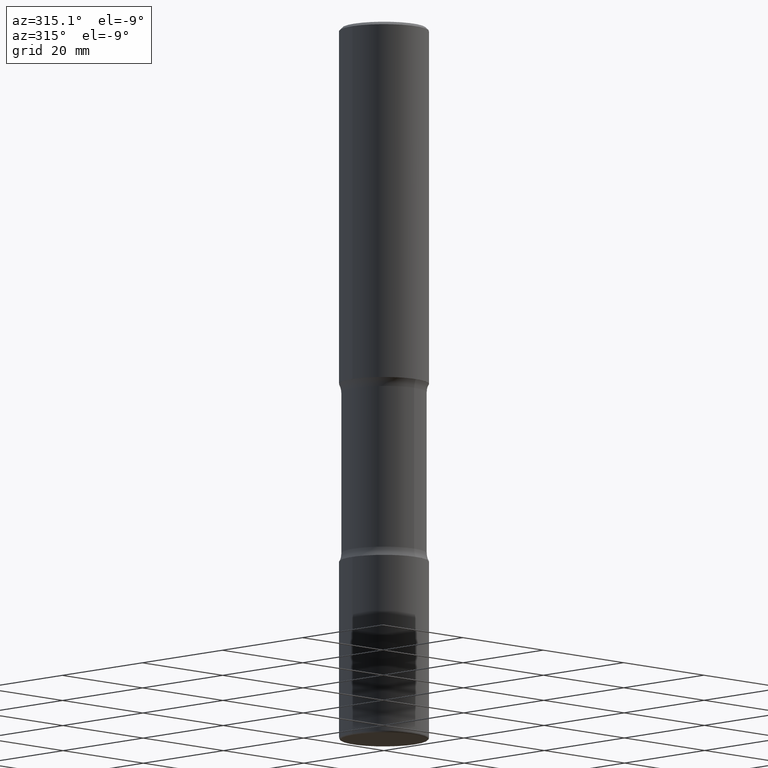
[diagram: clean part render]
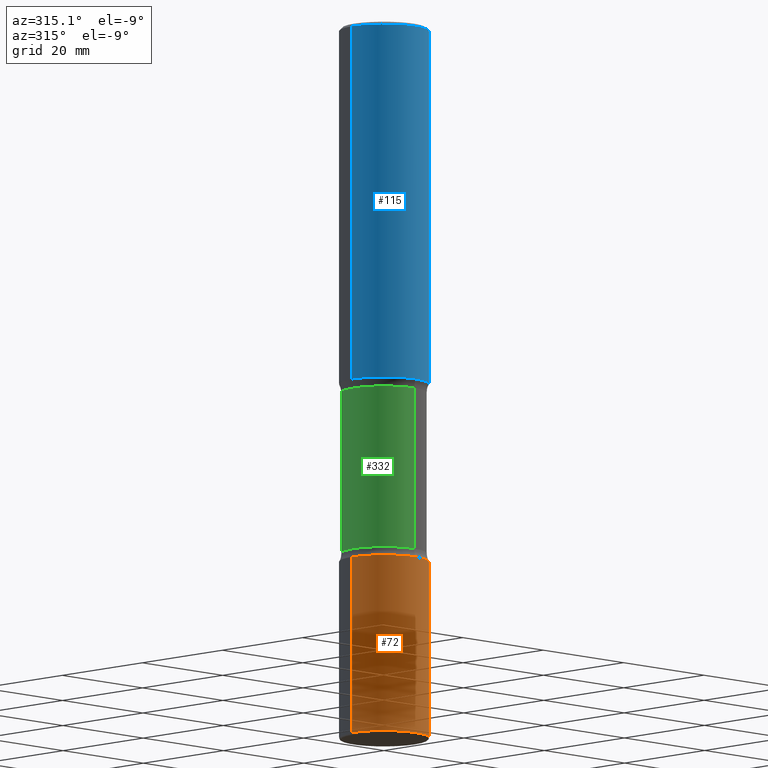
[diagram: same view with three faces highlighted in distinct colors, each labeled with its STEP entity id]
A machine part, auxiliary view with three faces highlighted in distinct colors.
Their STEP definitions:

[orange] entity #72 — the highlighted cylindrical surface (partial cylindrical patch) has radius 7.9375 mm, axis along (-0, 0, 1).
#11 = EDGE_CURVE ( 'NONE', #87, #347, #546, .T. ) ;
#15 = DIRECTION ( 'NONE',  ( -2.445468806185136597E-29, 3.491481338843145583E-15, 1.000000000000000000 ) ) ;
#31 = EDGE_CURVE ( 'NONE', #411, #347, #69, .T. ) ;
#36 = VECTOR ( 'NONE', #485, 39.37007874015748143 ) ;
#40 = CARTESIAN_POINT ( 'NONE',  ( 1.219066199883290567E-28, -1.740503447413308005E-14, -4.984999999999999432 ) ) ;
#54 = CARTESIAN_POINT ( 'NONE',  ( -0.3125000000000001665, -1.302859869814712249E-14, -3.749999999999999556 ) ) ;
#57 = FACE_OUTER_BOUND ( 'NONE', #380, .T. ) ;
#61 = CARTESIAN_POINT ( 'NONE',  ( 0.3125000000000001665, -2.182175836776959530E-15, 1.523805242436230636E-29 ) ) ;
#63 = ORIENTED_EDGE ( 'NONE', *, *, #178, .F. ) ;
#69 = CIRCLE ( 'NONE', #217, 0.3125000000000001665 ) ;
#72 = ADVANCED_FACE ( 'NONE', ( #57 ), #137, .T. ) ;
#80 = VECTOR ( 'NONE', #154, 39.37007874015748143 ) ;
#87 = VERTEX_POINT ( 'NONE', #513 ) ;
#94 = DIRECTION ( 'NONE',  ( 1.000000000000000000, -6.982962677686265133E-15, 0.000000000000000000 ) ) ;
#103 = ORIENTED_EDGE ( 'NONE', *, *, #466, .T. ) ;
#127 = DIRECTION ( 'NONE',  ( 1.000000000000000000, -6.982962677686264344E-15, 0.000000000000000000 ) ) ;
#137 = CYLINDRICAL_SURFACE ( 'NONE', #542, 0.3125000000000001665 ) ;
#154 = DIRECTION ( 'NONE',  ( -2.445468806185136877E-29, 3.491481338843145188E-15, 1.000000000000000000 ) ) ;
#158 = CARTESIAN_POINT ( 'NONE',  ( -0.3125000000000001665, 2.220446049250314264E-15, -1.537167215704658792E-29 ) ) ;
#178 = EDGE_CURVE ( 'NONE', #291, #411, #300, .T. ) ;
#204 = CARTESIAN_POINT ( 'NONE',  ( -0.3125000000000004441, -1.518458842488276381E-14, -4.984999999999999432 ) ) ;
#217 = AXIS2_PLACEMENT_3D ( 'NONE', #290, #15, #94 ) ;
#244 = DIRECTION ( 'NONE',  ( -2.445468806185136597E-29, 3.491481338843145583E-15, 1.000000000000000000 ) ) ;
#271 = AXIS2_PLACEMENT_3D ( 'NONE', #40, #311, #127 ) ;
#273 = DIRECTION ( 'NONE',  ( 1.000000000000000000, -6.982962677686266711E-15, 4.876176775795935232E-29 ) ) ;
#279 = CIRCLE ( 'NONE', #271, 0.3125000000000002220 ) ;
#287 = ORIENTED_EDGE ( 'NONE', *, *, #31, .F. ) ;
#290 = CARTESIAN_POINT ( 'NONE',  ( 9.170508023194261117E-29, -1.309305502066179584E-14, -3.749999999999999556 ) ) ;
#291 = VERTEX_POINT ( 'NONE', #204 ) ;
#300 = LINE ( 'NONE', #158, #36 ) ;
#311 = DIRECTION ( 'NONE',  ( -2.445468806185136597E-29, 3.491481338843145583E-15, 1.000000000000000000 ) ) ;
#340 = CARTESIAN_POINT ( 'NONE',  ( 0.3125000000000001665, -1.527523085743875418E-14, -3.749999999999999556 ) ) ;
#347 = VERTEX_POINT ( 'NONE', #340 ) ;
#380 = EDGE_LOOP ( 'NONE', ( #63, #103, #431, #287 ) ) ;
#411 = VERTEX_POINT ( 'NONE', #54 ) ;
#431 = ORIENTED_EDGE ( 'NONE', *, *, #11, .T. ) ;
#466 = EDGE_CURVE ( 'NONE', #291, #87, #279, .T. ) ;
#485 = DIRECTION ( 'NONE',  ( -2.445468806185136877E-29, 3.491481338843145188E-15, 1.000000000000000000 ) ) ;
#513 = CARTESIAN_POINT ( 'NONE',  ( 0.3125000000000004441, -1.958721031091003681E-14, -4.984999999999999432 ) ) ;
#531 = CARTESIAN_POINT ( 'NONE',  ( 0.000000000000000000, 0.000000000000000000, 0.000000000000000000 ) ) ;
#542 = AXIS2_PLACEMENT_3D ( 'NONE', #531, #244, #273 ) ;
#546 = LINE ( 'NONE', #61, #80 ) ;

[blue] entity #115 — the highlighted cylindrical surface (partial cylindrical patch) has radius 7.9375 mm, axis along (-0, 0, 1).
#1 = CARTESIAN_POINT ( 'NONE',  ( -0.3124999999999998890, 2.112346210000094260E-15, -0.02000000000000006981 ) ) ;
#24 = VERTEX_POINT ( 'NONE', #456 ) ;
#39 = DIRECTION ( 'NONE',  ( -2.445468806185136597E-29, 3.491481338843145583E-15, 1.000000000000000000 ) ) ;
#47 = AXIS2_PLACEMENT_3D ( 'NONE', #455, #371, #337 ) ;
#52 = ORIENTED_EDGE ( 'NONE', *, *, #83, .F. ) ;
#75 = DIRECTION ( 'NONE',  ( 1.000000000000000000, -6.982962677686266711E-15, 4.876176775795936353E-29 ) ) ;
#83 = EDGE_CURVE ( 'NONE', #547, #220, #305, .T. ) ;
#114 = EDGE_LOOP ( 'NONE', ( #503, #430, #463, #52 ) ) ;
#115 = ADVANCED_FACE ( 'NONE', ( #304 ), #476, .T. ) ;
#125 = DIRECTION ( 'NONE',  ( 1.000000000000000000, -6.982962677686266711E-15, 0.000000000000000000 ) ) ;
#171 = DIRECTION ( 'NONE',  ( -2.445468806185136877E-29, 3.491481338843145188E-15, 1.000000000000000000 ) ) ;
#216 = CARTESIAN_POINT ( 'NONE',  ( 0.000000000000000000, 0.000000000000000000, 0.000000000000000000 ) ) ;
#220 = VERTEX_POINT ( 'NONE', #441 ) ;
#226 = EDGE_CURVE ( 'NONE', #24, #547, #395, .T. ) ;
#251 = CARTESIAN_POINT ( 'NONE',  ( 0.3125000000000002220, -1.091087918388482329E-14, -2.499999999999999556 ) ) ;
#263 = DIRECTION ( 'NONE',  ( -2.445468806185136877E-29, 3.491481338843145188E-15, 1.000000000000000000 ) ) ;
#278 = VECTOR ( 'NONE', #171, 39.37007874015748143 ) ;
#303 = CARTESIAN_POINT ( 'NONE',  ( 0.3125000000000000000, -2.182175836776958347E-15, 1.523805242436230075E-29 ) ) ;
#304 = FACE_OUTER_BOUND ( 'NONE', #114, .T. ) ;
#305 = CIRCLE ( 'NONE', #530, 0.3124999999999998890 ) ;
#306 = EDGE_CURVE ( 'NONE', #24, #335, #501, .T. ) ;
#330 = DIRECTION ( 'NONE',  ( -2.445468806185136597E-29, 3.491481338843145583E-15, 1.000000000000000000 ) ) ;
#335 = VERTEX_POINT ( 'NONE', #251 ) ;
#337 = DIRECTION ( 'NONE',  ( 1.000000000000000000, -6.982962677686266711E-15, 0.000000000000000000 ) ) ;
#371 = DIRECTION ( 'NONE',  ( -2.445468806185136597E-29, 3.491481338843145583E-15, 1.000000000000000000 ) ) ;
#386 = LINE ( 'NONE', #303, #450 ) ;
#395 = LINE ( 'NONE', #560, #278 ) ;
#419 = CARTESIAN_POINT ( 'NONE',  ( 4.890937612370289799E-31, -6.982962677686315028E-17, -0.02000000000000006981 ) ) ;
#430 = ORIENTED_EDGE ( 'NONE', *, *, #306, .T. ) ;
#441 = CARTESIAN_POINT ( 'NONE',  ( 0.3124999999999998890, -2.213735251080466123E-15, -0.02000000000000006981 ) ) ;
#448 = EDGE_CURVE ( 'NONE', #335, #220, #386, .T. ) ;
#449 = AXIS2_PLACEMENT_3D ( 'NONE', #216, #39, #75 ) ;
#450 = VECTOR ( 'NONE', #263, 39.37007874015748143 ) ;
#455 = CARTESIAN_POINT ( 'NONE',  ( 6.113672015462840371E-29, -8.728703347107863365E-15, -2.499999999999999556 ) ) ;
#456 = CARTESIAN_POINT ( 'NONE',  ( -0.3125000000000002220, -2.178820437692046306E-15, -2.499999999999999556 ) ) ;
#463 = ORIENTED_EDGE ( 'NONE', *, *, #448, .T. ) ;
#476 = CYLINDRICAL_SURFACE ( 'NONE', #449, 0.3125000000000000000 ) ;
#501 = CIRCLE ( 'NONE', #47, 0.3125000000000002220 ) ;
#503 = ORIENTED_EDGE ( 'NONE', *, *, #226, .F. ) ;
#530 = AXIS2_PLACEMENT_3D ( 'NONE', #419, #330, #125 ) ;
#547 = VERTEX_POINT ( 'NONE', #1 ) ;
#560 = CARTESIAN_POINT ( 'NONE',  ( -0.3125000000000000000, 2.220446049250313081E-15, -1.537167215704658232E-29 ) ) ;

[green] entity #332 — the highlighted cylindrical surface (partial cylindrical patch) has radius 7.5406 mm, axis along (0, -0, -1).
#26 = VERTEX_POINT ( 'NONE', #105 ) ;
#38 = DIRECTION ( 'NONE',  ( 6.982962677686266711E-15, 1.000000000000000000, -3.680805717779217644E-15 ) ) ;
#43 = VECTOR ( 'NONE', #225, 39.37007874015748143 ) ;
#86 = EDGE_CURVE ( 'NONE', #509, #26, #354, .T. ) ;
#102 = DIRECTION ( 'NONE',  ( 2.521457479434076939E-29, -3.382661233743975076E-15, -1.000000000000000000 ) ) ;
#105 = CARTESIAN_POINT ( 'NONE',  ( -2.090307983695922804E-15, -0.2968750000000128786, -3.689484635215507069 ) ) ;
#117 = CARTESIAN_POINT ( 'NONE',  ( 6.171273093058203090E-29, -9.069431456984199816E-15, -2.560515364784490711 ) ) ;
#121 = AXIS2_PLACEMENT_3D ( 'NONE', #117, #177, #38 ) ;
#145 = CYLINDRICAL_SURFACE ( 'NONE', #343, 0.2968750000000000000 ) ;
#155 = ORIENTED_EDGE ( 'NONE', *, *, #350, .F. ) ;
#177 = DIRECTION ( 'NONE',  ( 2.521457479434076939E-29, -3.382661233743975076E-15, -1.000000000000000000 ) ) ;
#184 = CIRCLE ( 'NONE', #121, 0.2968750000000000000 ) ;
#222 = CARTESIAN_POINT ( 'NONE',  ( 2.073067044938233492E-15, 0.2968749999999827360, -5.000000000000000888 ) ) ;
#225 = DIRECTION ( 'NONE',  ( 2.521457479434076939E-29, -3.382661233743974681E-15, -1.000000000000000000 ) ) ;
#227 = AXIS2_PLACEMENT_3D ( 'NONE', #540, #102, #236 ) ;
#236 = DIRECTION ( 'NONE',  ( 6.982962677686265133E-15, 1.000000000000000000, -3.680805717779217644E-15 ) ) ;
#275 = CARTESIAN_POINT ( 'NONE',  ( 2.073067044938200360E-15, 0.2968749999999871214, -3.689484635215509289 ) ) ;
#280 = DIRECTION ( 'NONE',  ( 6.982962677686266711E-15, 1.000000000000000000, -3.680805717779217644E-15 ) ) ;
#295 = ORIENTED_EDGE ( 'NONE', *, *, #86, .F. ) ;
#297 = CARTESIAN_POINT ( 'NONE',  ( -2.036710343088299976E-15, -0.2968750000000173195, -4.999999999999999112 ) ) ;
#301 = VERTEX_POINT ( 'NONE', #275 ) ;
#329 = DIRECTION ( 'NONE',  ( 2.521457479434076939E-29, -3.382661233743975076E-15, -1.000000000000000000 ) ) ;
#332 = ADVANCED_FACE ( 'NONE', ( #374 ), #145, .T. ) ;
#343 = AXIS2_PLACEMENT_3D ( 'NONE', #468, #329, #280 ) ;
#350 = EDGE_CURVE ( 'NONE', #26, #301, #400, .T. ) ;
#354 = LINE ( 'NONE', #297, #43 ) ;
#374 = FACE_OUTER_BOUND ( 'NONE', #388, .T. ) ;
#388 = EDGE_LOOP ( 'NONE', ( #295, #506, #393, #155 ) ) ;
#393 = ORIENTED_EDGE ( 'NONE', *, *, #433, .T. ) ;
#400 = CIRCLE ( 'NONE', #227, 0.2968750000000000000 ) ;
#423 = EDGE_CURVE ( 'NONE', #509, #539, #184, .T. ) ;
#433 = EDGE_CURVE ( 'NONE', #539, #301, #434, .T. ) ;
#434 = LINE ( 'NONE', #222, #458 ) ;
#458 = VECTOR ( 'NONE', #480, 39.37007874015748143 ) ;
#468 = CARTESIAN_POINT ( 'NONE',  ( 1.232232987248685960E-28, -1.732138156284176685E-14, -5.000000000000000000 ) ) ;
#475 = CARTESIAN_POINT ( 'NONE',  ( -2.090307983695953569E-15, -0.2968750000000091038, -2.560515364784489822 ) ) ;
#478 = CARTESIAN_POINT ( 'NONE',  ( 2.073067044938171961E-15, 0.2968749999999909517, -2.560515364784492043 ) ) ;
#480 = DIRECTION ( 'NONE',  ( 2.521457479434076939E-29, -3.382661233743974681E-15, -1.000000000000000000 ) ) ;
#506 = ORIENTED_EDGE ( 'NONE', *, *, #423, .T. ) ;
#509 = VERTEX_POINT ( 'NONE', #475 ) ;
#539 = VERTEX_POINT ( 'NONE', #478 ) ;
#540 = CARTESIAN_POINT ( 'NONE',  ( 9.017921104037724021E-29, -1.288835204215942242E-14, -3.689484635215508401 ) ) ;